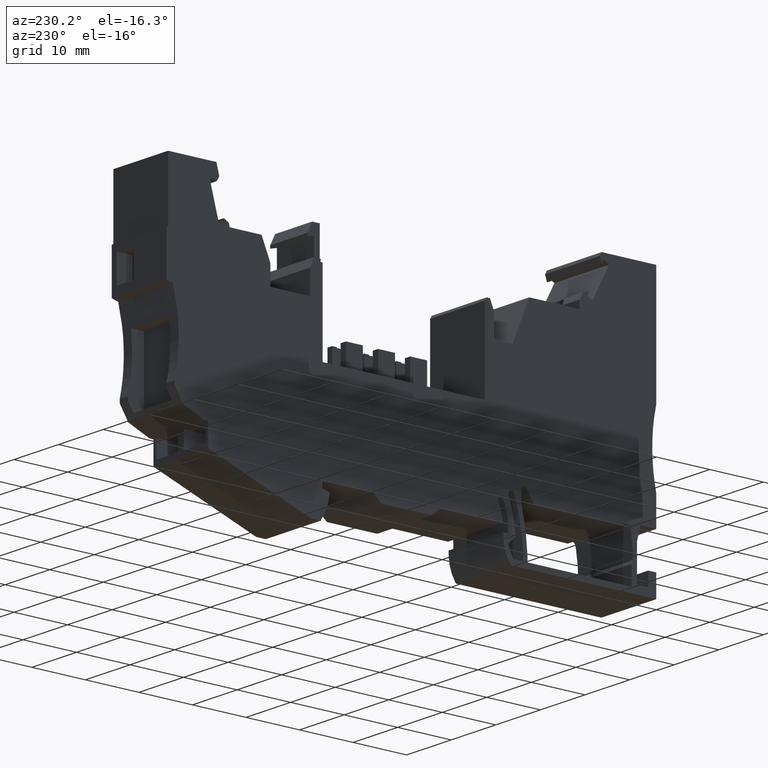
[diagram: clean part render]
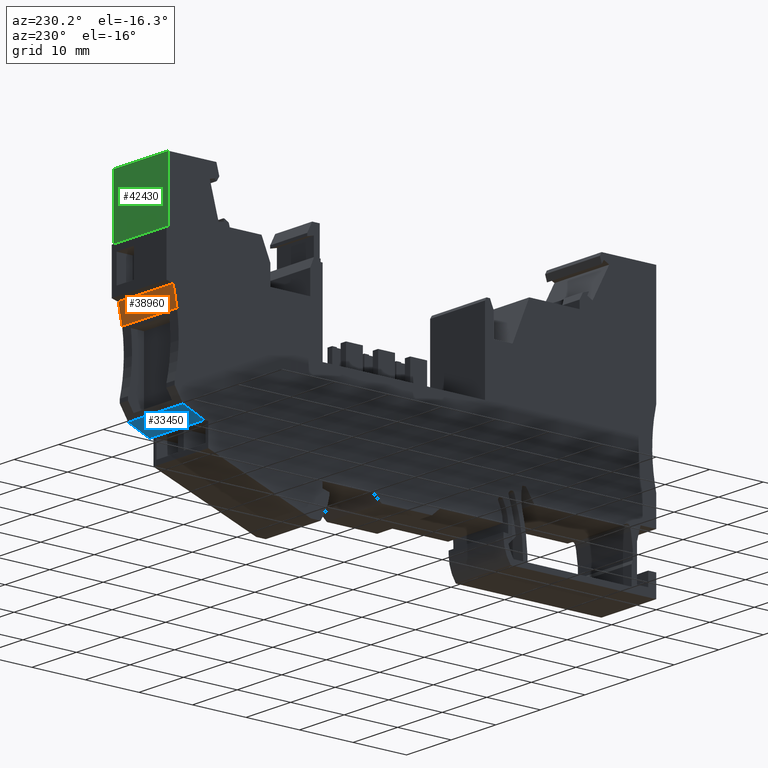
[diagram: same view with three faces highlighted in distinct colors, each labeled with its STEP entity id]
A machine part, auxiliary view with three faces highlighted in distinct colors.
Their STEP definitions:

[orange] entity #38960 — the highlighted planar face has unit normal (0, -0.9791, 0.2033).
#7790=CARTESIAN_POINT('',(-43.6780249056014,6.5224965489319,-6.15));
#7800=VERTEX_POINT('',#7790);
#7830=CARTESIAN_POINT('',(-42.9785788230396,3.15325651176028,-6.15));
#7840=DIRECTION('',(-0.203263777322592,0.979124015040256,0.));
#7850=VECTOR('',#7840,1.);
#7860=LINE('',#7830,#7850);
#7870=CARTESIAN_POINT('',(-42.9516668007187,3.02362098252418,-6.15));
#7880=VERTEX_POINT('',#7870);
#7890=EDGE_CURVE('',#7880,#7800,#7860,.T.);
#14990=CARTESIAN_POINT('',(-42.9516668007187,3.02362098252429,
6.15000000000077));
#15000=VERTEX_POINT('',#14990);
#15030=CARTESIAN_POINT('',(-42.3239703979556,0.,6.15));
#15040=DIRECTION('',(0.203263777322592,-0.979124015040256,0.));
#15050=VECTOR('',#15040,1.);
#15060=LINE('',#15030,#15050);
#15070=CARTESIAN_POINT('',(-43.6780249056014,6.52249654893215,
6.15000000000087));
#15080=VERTEX_POINT('',#15070);
#15090=EDGE_CURVE('',#15080,#15000,#15060,.T.);
#38620=CARTESIAN_POINT('',(-42.9516668007187,3.02362098252429,0.));
#38630=DIRECTION('',(0.,0.,1.));
#38640=VECTOR('',#38630,1.);
#38650=LINE('',#38620,#38640);
#38660=EDGE_CURVE('',#7880,#15000,#38650,.T.);
#38800=CARTESIAN_POINT('',(-43.6780249056014,6.52249654893189,-6.15));
#38810=DIRECTION('',(0.979124015040256,0.203263777322592,-0.));
#38820=DIRECTION('',(-0.203263777322592,0.979124015040256,0.));
#38830=AXIS2_PLACEMENT_3D('',#38800,#38810,#38820);
#38840=PLANE('',#38830);
#38850=ORIENTED_EDGE('',*,*,#7890,.F.);
#38860=CARTESIAN_POINT('',(-43.6780249056014,6.52249654893214,0.));
#38870=DIRECTION('',(0.,0.,1.));
#38880=VECTOR('',#38870,1.);
#38890=LINE('',#38860,#38880);
#38900=EDGE_CURVE('',#7800,#15080,#38890,.T.);
#38910=ORIENTED_EDGE('',*,*,#38900,.F.);
#38920=ORIENTED_EDGE('',*,*,#15090,.F.);
#38930=ORIENTED_EDGE('',*,*,#38660,.T.);
#38940=EDGE_LOOP('',(#38930,#38920,#38910,#38850));
#38950=FACE_OUTER_BOUND('',#38940,.T.);
#38960=ADVANCED_FACE('',(#38950),#38840,.F.);

[blue] entity #33450 — the highlighted planar face has unit normal (0, -0.3893, 0.9211).
#8590=CARTESIAN_POINT('',(-41.8139999999931,-11.1290000000028,-6.15));
#8600=VERTEX_POINT('',#8590);
#8630=CARTESIAN_POINT('',(-38.9584172542171,-12.3357978675273,-6.15));
#8640=DIRECTION('',(-0.921121510781072,0.389275175648789,0.));
#8650=VECTOR('',#8640,1.);
#8660=LINE('',#8630,#8650);
#8670=CARTESIAN_POINT('',(-37.86,-12.8,-6.15));
#8680=VERTEX_POINT('',#8670);
#8690=EDGE_CURVE('',#8680,#8600,#8660,.T.);
#14190=CARTESIAN_POINT('',(-37.86,-12.8,6.15000000000033));
#14200=VERTEX_POINT('',#14190);
#14230=CARTESIAN_POINT('',(0.,-28.8000151745083,6.15));
#14240=DIRECTION('',(0.921121510781072,-0.389275175648789,0.));
#14250=VECTOR('',#14240,1.);
#14260=LINE('',#14230,#14250);
#14270=CARTESIAN_POINT('',(-41.8139999999931,-11.1290000000028,
6.15000000000037));
#14280=VERTEX_POINT('',#14270);
#14290=EDGE_CURVE('',#14280,#14200,#14260,.T.);
#25830=CARTESIAN_POINT('',(-37.86,-12.8,0.));
#25840=DIRECTION('',(0.,0.,1.));
#25850=VECTOR('',#25840,1.);
#25860=LINE('',#25830,#25850);
#25870=EDGE_CURVE('',#8680,#14200,#25860,.T.);
#33290=CARTESIAN_POINT('',(-41.8139999999931,-11.1290000000028,-6.15));
#33300=DIRECTION('',(0.389275175648789,0.921121510781072,-0.));
#33310=DIRECTION('',(-0.921121510781072,0.389275175648789,0.));
#33320=AXIS2_PLACEMENT_3D('',#33290,#33300,#33310);
#33330=PLANE('',#33320);
#33340=ORIENTED_EDGE('',*,*,#8690,.F.);
#33350=CARTESIAN_POINT('',(-41.8139999999931,-11.1290000000028,0.));
#33360=DIRECTION('',(0.,0.,1.));
#33370=VECTOR('',#33360,1.);
#33380=LINE('',#33350,#33370);
#33390=EDGE_CURVE('',#8600,#14280,#33380,.T.);
#33400=ORIENTED_EDGE('',*,*,#33390,.F.);
#33410=ORIENTED_EDGE('',*,*,#14290,.F.);
#33420=ORIENTED_EDGE('',*,*,#25870,.T.);
#33430=EDGE_LOOP('',(#33420,#33410,#33400,#33340));
#33440=FACE_OUTER_BOUND('',#33430,.T.);
#33450=ADVANCED_FACE('',(#33440),#33330,.F.);

[green] entity #42430 — the highlighted planar face has unit normal (0, -1, 0).
#7470=CARTESIAN_POINT('',(-44.6,26.2,-6.15));
#7480=VERTEX_POINT('',#7470);
#7510=CARTESIAN_POINT('',(-44.6,24.,-6.15));
#7520=DIRECTION('',(0.,1.,0.));
#7530=VECTOR('',#7520,1.);
#7540=LINE('',#7510,#7530);
#7550=CARTESIAN_POINT('',(-44.6,14.93033903092,-6.15));
#7560=VERTEX_POINT('',#7550);
#7570=EDGE_CURVE('',#7560,#7480,#7540,.T.);
#15310=CARTESIAN_POINT('',(-44.6,14.93033903092,6.1500000000011));
#15320=VERTEX_POINT('',#15310);
#15350=CARTESIAN_POINT('',(-44.6,0.,6.15));
#15360=DIRECTION('',(0.,-1.,0.));
#15370=VECTOR('',#15360,1.);
#15380=LINE('',#15350,#15370);
#15390=CARTESIAN_POINT('',(-44.6,26.2,6.15000000000141));
#15400=VERTEX_POINT('',#15390);
#15410=EDGE_CURVE('',#15400,#15320,#15380,.T.);
#41350=CARTESIAN_POINT('',(-44.6,14.93033903092,0.));
#41360=DIRECTION('',(0.,0.,1.));
#41370=VECTOR('',#41360,1.);
#41380=LINE('',#41350,#41370);
#41390=EDGE_CURVE('',#7560,#15320,#41380,.T.);
#42270=CARTESIAN_POINT('',(-44.6,26.2,-6.15));
#42280=DIRECTION('',(1.,0.,0.));
#42290=DIRECTION('',(0.,1.,0.));
#42300=AXIS2_PLACEMENT_3D('',#42270,#42280,#42290);
#42310=PLANE('',#42300);
#42320=ORIENTED_EDGE('',*,*,#7570,.F.);
#42330=CARTESIAN_POINT('',(-44.6,26.2,0.));
#42340=DIRECTION('',(0.,0.,1.));
#42350=VECTOR('',#42340,1.);
#42360=LINE('',#42330,#42350);
#42370=EDGE_CURVE('',#7480,#15400,#42360,.T.);
#42380=ORIENTED_EDGE('',*,*,#42370,.F.);
#42390=ORIENTED_EDGE('',*,*,#15410,.F.);
#42400=ORIENTED_EDGE('',*,*,#41390,.T.);
#42410=EDGE_LOOP('',(#42400,#42390,#42380,#42320));
#42420=FACE_OUTER_BOUND('',#42410,.T.);
#42430=ADVANCED_FACE('',(#42420),#42310,.F.);